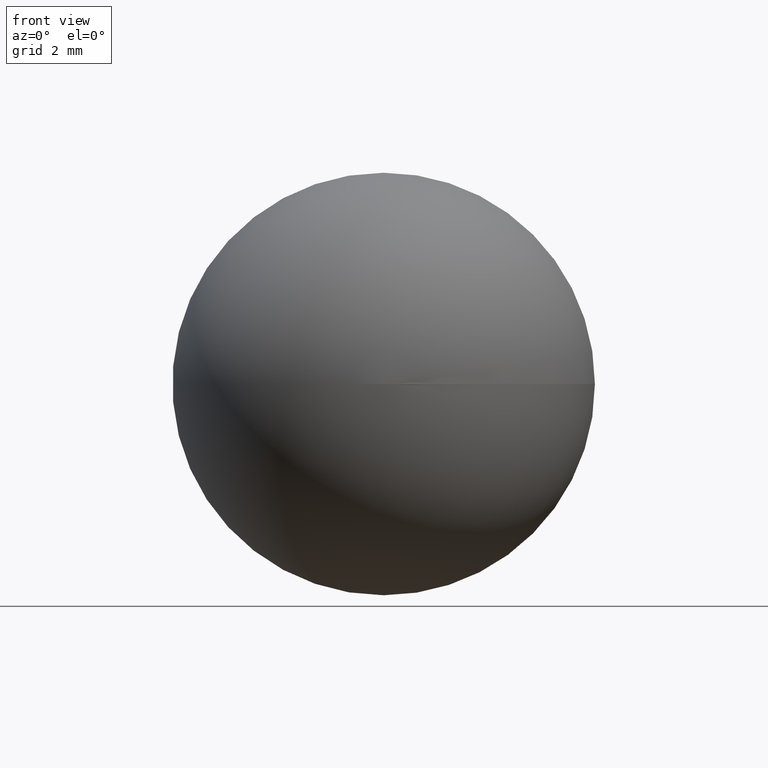
[diagram: clean part render]
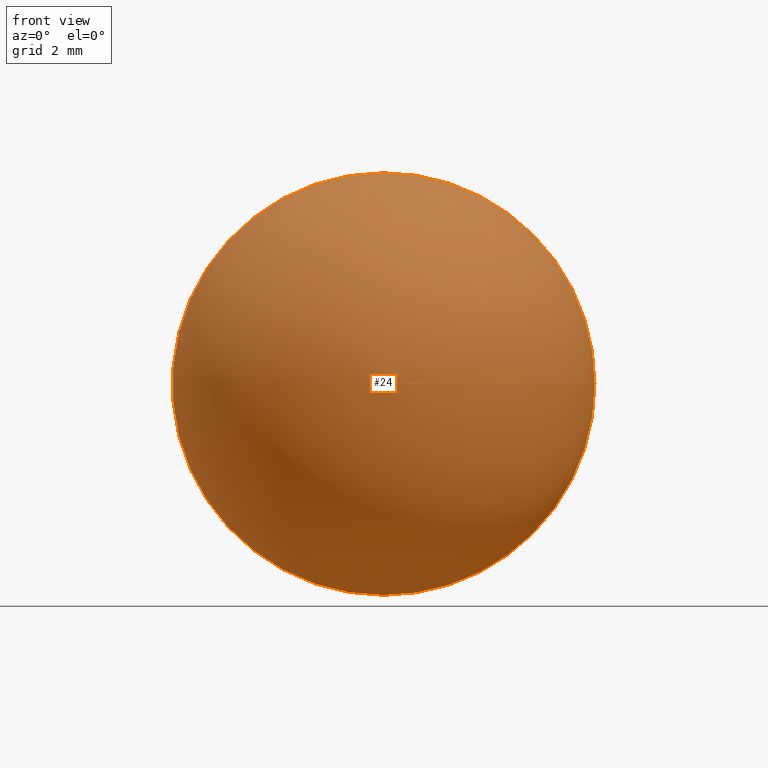
[diagram: same view with one face highlighted and labeled with its STEP entity id]
A machine part, front view. The second image highlights one B-rep face of the part: STEP entity #24.
In plain terms, the highlighted spherical surface has radius 4.5 mm.
Its self-contained STEP definition (entity closure, byte-faithful):
#18 = DIRECTION ( 'NONE',  ( 1.224646799147353200E-016, -1.000000000000000000, 0.0000000000000000000 ) ) ;
#20 = CARTESIAN_POINT ( 'NONE',  ( 2.755455298081544300E-016, 0.0000000000000000000, -4.500000000000000000 ) ) ;
#24 = ADVANCED_FACE ( 'NONE', ( #56 ), #94, .T. ) ;
#30 = VERTEX_POINT ( 'NONE', #138 ) ;
#32 = DIRECTION ( 'NONE',  ( 0.0000000000000000000, 0.0000000000000000000, 1.000000000000000000 ) ) ;
#40 = AXIS2_PLACEMENT_3D ( 'NONE', #140, #18, #137 ) ;
#43 = CIRCLE ( 'NONE', #40, 4.500000000000000000 ) ;
#46 = VERTEX_POINT ( 'NONE', #20 ) ;
#56 = FACE_OUTER_BOUND ( 'NONE', #191, .T. ) ;
#61 = ORIENTED_EDGE ( 'NONE', *, *, #154, .F. ) ;
#68 = DIRECTION ( 'NONE',  ( 1.000000000000000000, 0.0000000000000000000, 0.0000000000000000000 ) ) ;
#71 = DIRECTION ( 'NONE',  ( 0.0000000000000000000, 1.000000000000000000, -0.0000000000000000000 ) ) ;
#73 = AXIS2_PLACEMENT_3D ( 'NONE', #199, #71, #32 ) ;
#94 = SPHERICAL_SURFACE ( 'NONE', #152, 4.500000000000000000 ) ;
#107 = CARTESIAN_POINT ( 'NONE',  ( 0.0000000000000000000, 0.0000000000000000000, 0.0000000000000000000 ) ) ;
#124 = EDGE_CURVE ( 'NONE', #30, #46, #43, .T. ) ;
#137 = DIRECTION ( 'NONE',  ( 1.000000000000000000, 1.224646799147353000E-016, 0.0000000000000000000 ) ) ;
#138 = CARTESIAN_POINT ( 'NONE',  ( 2.755455298081544300E-016, 0.0000000000000000000, 4.500000000000000000 ) ) ;
#140 = CARTESIAN_POINT ( 'NONE',  ( 0.0000000000000000000, 0.0000000000000000000, 0.0000000000000000000 ) ) ;
#152 = AXIS2_PLACEMENT_3D ( 'NONE', #107, #165, #68 ) ;
#154 = EDGE_CURVE ( 'NONE', #30, #46, #174, .T. ) ;
#165 = DIRECTION ( 'NONE',  ( 0.0000000000000000000, -1.000000000000000000, -0.0000000000000000000 ) ) ;
#174 = CIRCLE ( 'NONE', #73, 4.500000000000000000 ) ;
#191 = EDGE_LOOP ( 'NONE', ( #61, #196 ) ) ;
#196 = ORIENTED_EDGE ( 'NONE', *, *, #124, .T. ) ;
#199 = CARTESIAN_POINT ( 'NONE',  ( 0.0000000000000000000, 0.0000000000000000000, 0.0000000000000000000 ) ) ;